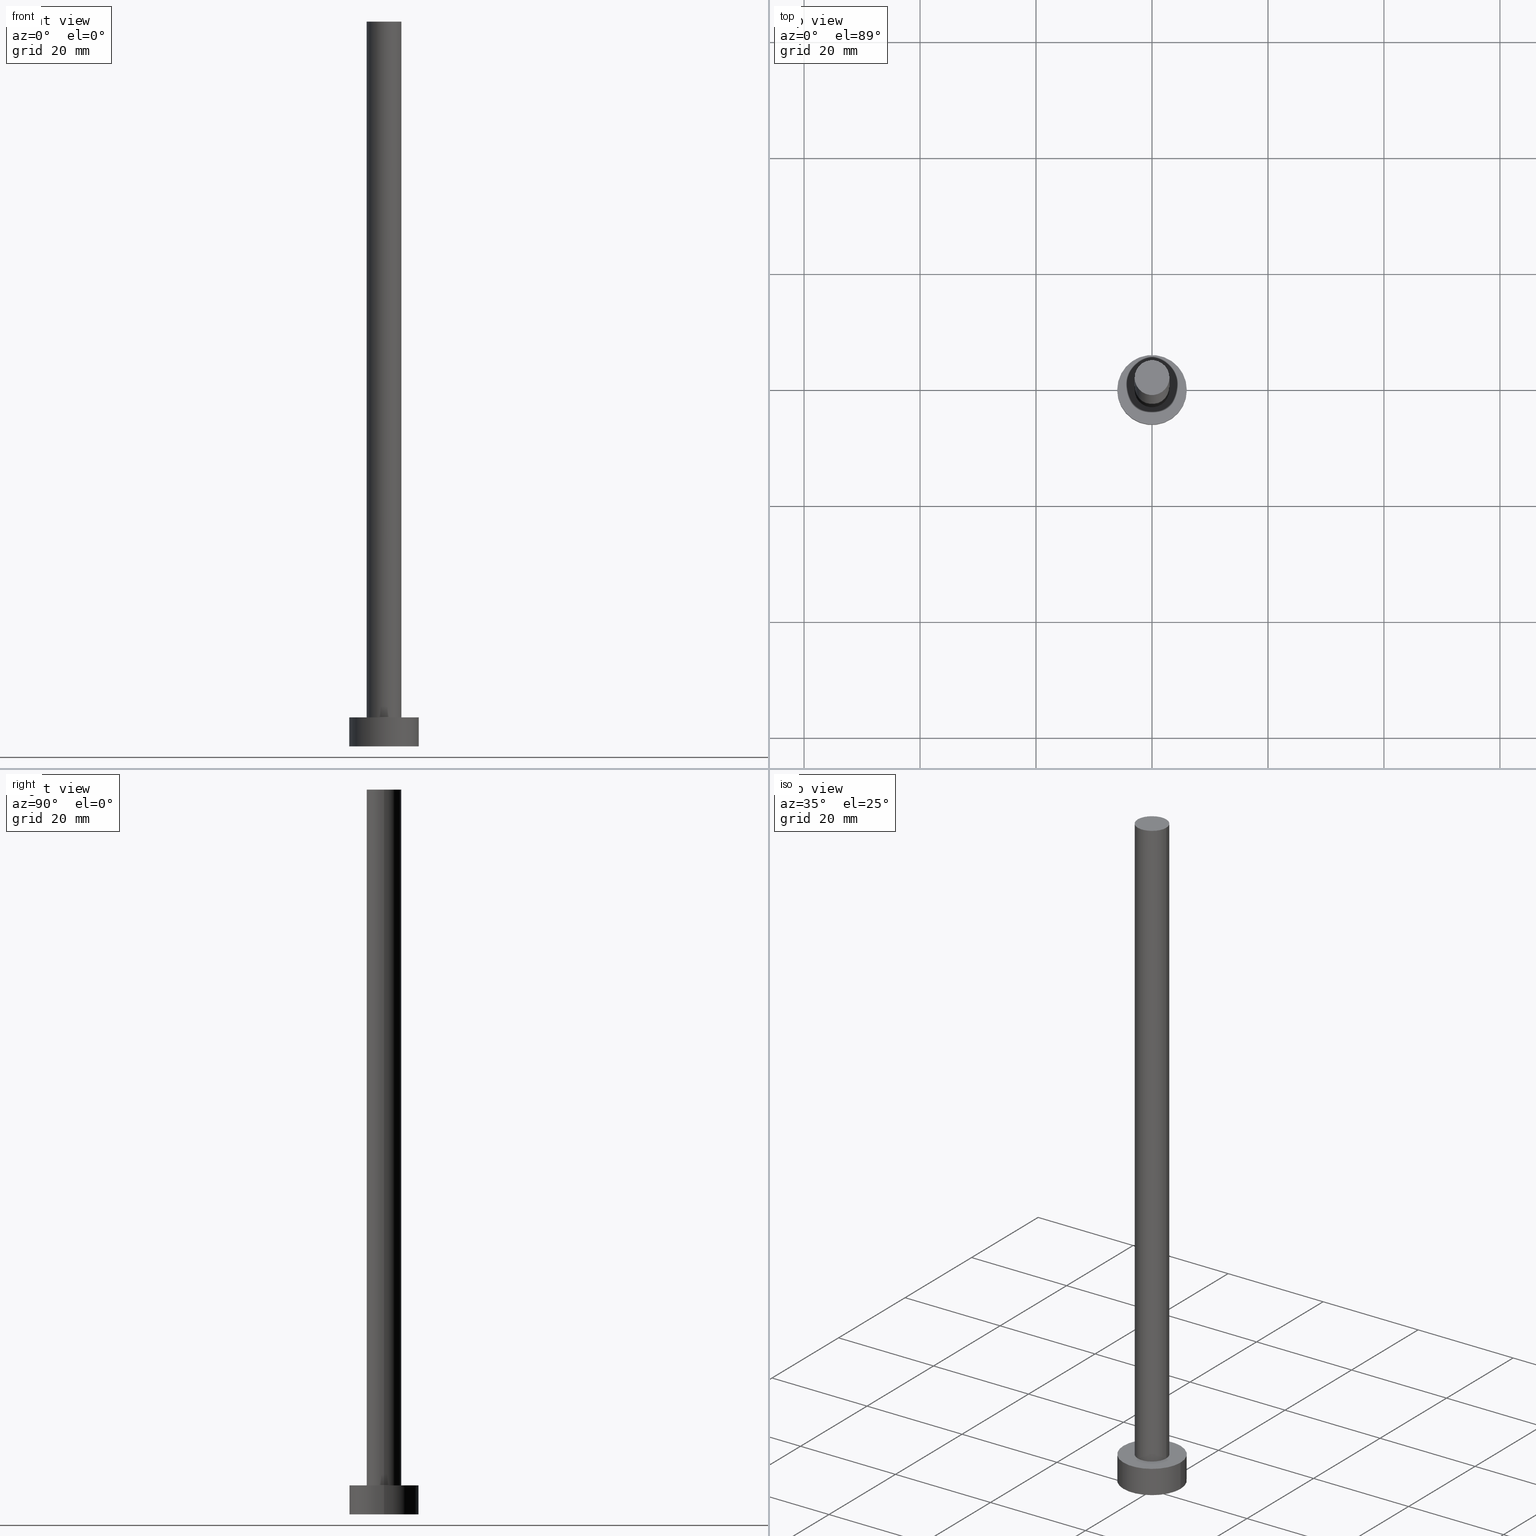
[diagram: canonical four-view strip — front | top / right | iso, engineering-drawing reading convention]
A machine part, canonical four-view strip (front | top / right | iso — engineering-drawing reading convention). The complete STEP part file that produces these views, byte-faithful:
ISO-10303-21;
HEADER;
FILE_DESCRIPTION (( 'STEP AP203' ),
    '1' );
FILE_NAME ('3642.STEP',
    '2023-02-12T11:40:48',
    ( '' ),
    ( '' ),
    'SwSTEP 2.0',
    'SolidWorks 2019',
    '' );
FILE_SCHEMA (( 'CONFIG_CONTROL_DESIGN' ));
ENDSEC;

DATA;
#1 = PRODUCT_DEFINITION_SHAPE ( 'NONE', 'NONE',  #48 ) ;
#2 = APPROVAL_DATE_TIME ( #132, #21 ) ;
#3 = DIRECTION ( 'NONE',  ( 1.000000000000000000, 0.000000000000000000, -0.000000000000000000 ) ) ;
#4 = PLANE ( 'NONE',  #58 ) ;
#5 = CC_DESIGN_PERSON_AND_ORGANIZATION_ASSIGNMENT ( #253, #150, ( #9 ) ) ;
#6 = DIRECTION ( 'NONE',  ( -0.000000000000000000, -0.000000000000000000, -1.000000000000000000 ) ) ;
#7 = DIRECTION ( 'NONE',  ( -0.000000000000000000, -0.000000000000000000, -1.000000000000000000 ) ) ;
#8 = FACE_BOUND ( 'NONE', #247, .T. ) ;
#9 = PRODUCT_DEFINITION_FORMATION_WITH_SPECIFIED_SOURCE ( 'LIBOVOLN�', '', #250, .NOT_KNOWN. ) ;
#10 = PERSON_AND_ORGANIZATION_ROLE ( 'creator' ) ;
#11 = EDGE_LOOP ( 'NONE', ( #164, #34 ) ) ;
#12 = CALENDAR_DATE ( 2023, 12, 2 ) ;
#13 = VERTEX_POINT ( 'NONE', #75 ) ;
#14 = EDGE_CURVE ( 'NONE', #145, #186, #194, .T. ) ;
#15 = DATE_AND_TIME ( #33, #235 ) ;
#16 = VERTEX_POINT ( 'NONE', #204 ) ;
#17 = LOCAL_TIME ( 12, 40, 48.00000000000000000, #229 ) ;
#18 = PERSON_AND_ORGANIZATION_ROLE ( 'creator' ) ;
#19 = EDGE_LOOP ( 'NONE', ( #51, #208, #71, #73 ) ) ;
#20 = DIRECTION ( 'NONE',  ( -0.000000000000000000, -0.000000000000000000, -1.000000000000000000 ) ) ;
#21 = APPROVAL ( #211, 'NEUR�EN�' ) ;
#22 = AXIS2_PLACEMENT_3D ( 'NONE', #244, #196, #135 ) ;
#23 = AXIS2_PLACEMENT_3D ( 'NONE', #162, #63, #203 ) ;
#24 = LINE ( 'NONE', #66, #37 ) ;
#25 = CARTESIAN_POINT ( 'NONE',  ( 0.000000000000000000, 0.000000000000000000, 0.000000000000000000 ) ) ;
#26 = DIRECTION ( 'NONE',  ( 0.000000000000000000, 0.000000000000000000, 1.000000000000000000 ) ) ;
#27 = CARTESIAN_POINT ( 'NONE',  ( 0.000000000000000000, 0.000000000000000000, 0.000000000000000000 ) ) ;
#28 = ADVANCED_FACE ( 'NONE', ( #183 ), #166, .T. ) ;
#29 = ORIENTED_EDGE ( 'NONE', *, *, #153, .T. ) ;
#30 = ORIENTED_EDGE ( 'NONE', *, *, #156, .T. ) ;
#31 = CIRCLE ( 'NONE', #225, 6.000000000000000888 ) ;
#32 = CARTESIAN_POINT ( 'NONE',  ( 0.000000000000000000, 0.000000000000000000, 5.000000000000000000 ) ) ;
#33 = CALENDAR_DATE ( 2023, 12, 2 ) ;
#34 = ORIENTED_EDGE ( 'NONE', *, *, #156, .F. ) ;
#35 = APPLICATION_PROTOCOL_DEFINITION ( 'international standard', 'config_control_design', 1994, #184 ) ;
#36 = CARTESIAN_POINT ( 'NONE',  ( 0.000000000000000000, 0.000000000000000000, 5.000000000000000000 ) ) ;
#37 = VECTOR ( 'NONE', #174, 1000.000000000000000 ) ;
#38 = CALENDAR_DATE ( 2023, 12, 2 ) ;
#39 = CARTESIAN_POINT ( 'NONE',  ( 0.000000000000000000, 0.000000000000000000, 5.000000000000000000 ) ) ;
#40 = DIRECTION ( 'NONE',  ( -0.000000000000000000, -0.000000000000000000, -1.000000000000000000 ) ) ;
#41 = APPROVAL ( #128, 'NEUR�EN�' ) ;
#42 = DIRECTION ( 'NONE',  ( 0.000000000000000000, 0.000000000000000000, 1.000000000000000000 ) ) ;
#43 = AXIS2_PLACEMENT_3D ( 'NONE', #39, #40, #192 ) ;
#44 = ADVANCED_FACE ( 'NONE', ( #8, #53 ), #209, .T. ) ;
#45 = AXIS2_PLACEMENT_3D ( 'NONE', #106, #101, #249 ) ;
#46 = CC_DESIGN_PERSON_AND_ORGANIZATION_ASSIGNMENT ( #187, #18, ( #9 ) ) ;
#47 = CARTESIAN_POINT ( 'NONE',  ( 0.000000000000000000, 0.000000000000000000, 125.0000000000000000 ) ) ;
#48 = PRODUCT_DEFINITION ( 'NEZN�M�', '', #9, #120 ) ;
#49 = APPLICATION_PROTOCOL_DEFINITION ( 'international standard', 'config_control_design', 1994, #218 ) ;
#50 = EDGE_LOOP ( 'NONE', ( #131, #254, #30, #189 ) ) ;
#51 = ORIENTED_EDGE ( 'NONE', *, *, #202, .F. ) ;
#52 = PERSON_AND_ORGANIZATION ( #228, #243 ) ;
#53 = FACE_OUTER_BOUND ( 'NONE', #127, .T. ) ;
#54 = APPROVAL_DATE_TIME ( #15, #41 ) ;
#55 = ORIENTED_EDGE ( 'NONE', *, *, #67, .T. ) ;
#56 = PERSON_AND_ORGANIZATION ( #228, #243 ) ;
#57 = ORIENTED_EDGE ( 'NONE', *, *, #14, .F. ) ;
#58 = AXIS2_PLACEMENT_3D ( 'NONE', #111, #193, #213 ) ;
#59 = COORDINATED_UNIVERSAL_TIME_OFFSET ( 1, 0, .AHEAD. ) ;
#60 = SHAPE_DEFINITION_REPRESENTATION ( #1, #114 ) ;
#61 = CARTESIAN_POINT ( 'NONE',  ( -3.000000000000000444, 0.000000000000000000, 125.0000000000000000 ) ) ;
#62 = FACE_OUTER_BOUND ( 'NONE', #19, .T. ) ;
#63 = DIRECTION ( 'NONE',  ( 0.000000000000000000, 0.000000000000000000, 1.000000000000000000 ) ) ;
#64 = CC_DESIGN_DATE_AND_TIME_ASSIGNMENT ( #216, #236, ( #181 ) ) ;
#65 = DIRECTION ( 'NONE',  ( 1.000000000000000000, 0.000000000000000000, 0.000000000000000000 ) ) ;
#66 = CARTESIAN_POINT ( 'NONE',  ( -6.000000000000000888, 0.000000000000000000, 5.000000000000000000 ) ) ;
#67 = EDGE_CURVE ( 'NONE', #107, #89, #92, .T. ) ;
#68 = PERSON_AND_ORGANIZATION ( #228, #243 ) ;
#69 = CC_DESIGN_APPROVAL ( #21, ( #181 ) ) ;
#70 = ORIENTED_EDGE ( 'NONE', *, *, #124, .F. ) ;
#71 = ORIENTED_EDGE ( 'NONE', *, *, #170, .T. ) ;
#72 = APPROVAL_ROLE ( '' ) ;
#73 = ORIENTED_EDGE ( 'NONE', *, *, #199, .T. ) ;
#74 = LOCAL_TIME ( 12, 40, 48.00000000000000000, #178 ) ;
#75 = CARTESIAN_POINT ( 'NONE',  ( 6.000000000000000888, 7.347880794884120722E-16, 5.000000000000000000 ) ) ;
#76 = CARTESIAN_POINT ( 'NONE',  ( 3.000000000000000444, 3.673940397442060361E-16, 125.0000000000000000 ) ) ;
#77 = ADVANCED_FACE ( 'NONE', ( #78 ), #4, .F. ) ;
#78 = FACE_OUTER_BOUND ( 'NONE', #11, .T. ) ;
#79 = FACE_OUTER_BOUND ( 'NONE', #232, .T. ) ;
#80 = CLOSED_SHELL ( 'NONE', ( #28, #191, #117, #44, #77, #97, #233 ) ) ;
#81 = CARTESIAN_POINT ( 'NONE',  ( 0.000000000000000000, 0.000000000000000000, 5.000000000000000000 ) ) ;
#82 = DIRECTION ( 'NONE',  ( 0.000000000000000000, 0.000000000000000000, 1.000000000000000000 ) ) ;
#83 = CC_DESIGN_PERSON_AND_ORGANIZATION_ASSIGNMENT ( #68, #10, ( #48 ) ) ;
#84 = CC_DESIGN_APPROVAL ( #248, ( #48 ) ) ;
#85 = DATE_TIME_ROLE ( 'creation_date' ) ;
#86 = ORIENTED_EDGE ( 'NONE', *, *, #67, .F. ) ;
#87 = ORIENTED_EDGE ( 'NONE', *, *, #142, .F. ) ;
#88 = AXIS2_PLACEMENT_3D ( 'NONE', #100, #82, #159 ) ;
#89 = VERTEX_POINT ( 'NONE', #76 ) ;
#90 = CC_DESIGN_DATE_AND_TIME_ASSIGNMENT ( #231, #85, ( #48 ) ) ;
#91 = CARTESIAN_POINT ( 'NONE',  ( 3.000000000000000444, 3.673940397442060361E-16, 125.0000000000000000 ) ) ;
#92 = CIRCLE ( 'NONE', #104, 3.000000000000000444 ) ;
#93 = CIRCLE ( 'NONE', #140, 3.000000000000000444 ) ;
#94 = COORDINATED_UNIVERSAL_TIME_OFFSET ( 1, 0, .AHEAD. ) ;
#95 = CALENDAR_DATE ( 2023, 12, 2 ) ;
#96 = CARTESIAN_POINT ( 'NONE',  ( 3.000000000000000444, 3.673940397442060361E-16, 5.000000000000000000 ) ) ;
#97 = ADVANCED_FACE ( 'NONE', ( #79 ), #154, .T. ) ;
#98 = DIRECTION ( 'NONE',  ( 0.000000000000000000, 0.000000000000000000, 1.000000000000000000 ) ) ;
#99 = VECTOR ( 'NONE', #6, 1000.000000000000000 ) ;
#100 = CARTESIAN_POINT ( 'NONE',  ( 0.000000000000000000, 0.000000000000000000, 5.000000000000000000 ) ) ;
#101 = DIRECTION ( 'NONE',  ( 0.000000000000000000, 0.000000000000000000, 1.000000000000000000 ) ) ;
#102 = DIRECTION ( 'NONE',  ( 1.000000000000000000, 0.000000000000000000, 0.000000000000000000 ) ) ;
#103 = APPROVAL_STATUS ( 'not_yet_approved' ) ;
#104 = AXIS2_PLACEMENT_3D ( 'NONE', #115, #42, #109 ) ;
#105 = CC_DESIGN_PERSON_AND_ORGANIZATION_ASSIGNMENT ( #56, #110, ( #181 ) ) ;
#106 = CARTESIAN_POINT ( 'NONE',  ( 0.000000000000000000, 0.000000000000000000, 0.000000000000000000 ) ) ;
#107 = VERTEX_POINT ( 'NONE', #61 ) ;
#108 = EDGE_LOOP ( 'NONE', ( #55, #182 ) ) ;
#109 = DIRECTION ( 'NONE',  ( 1.000000000000000000, 0.000000000000000000, 0.000000000000000000 ) ) ;
#110 = PERSON_AND_ORGANIZATION_ROLE ( 'classification_officer' ) ;
#111 = CARTESIAN_POINT ( 'NONE',  ( 0.000000000000000000, 0.000000000000000000, 0.000000000000000000 ) ) ;
#112 = DIRECTION ( 'NONE',  ( 0.000000000000000000, 0.000000000000000000, 1.000000000000000000 ) ) ;
#113 = CC_DESIGN_SECURITY_CLASSIFICATION ( #181, ( #9 ) ) ;
#114 = ADVANCED_BREP_SHAPE_REPRESENTATION ( '3642', ( #144, #45 ), #137 ) ;
#115 = CARTESIAN_POINT ( 'NONE',  ( 0.000000000000000000, 0.000000000000000000, 125.0000000000000000 ) ) ;
#116 = PRODUCT_RELATED_PRODUCT_CATEGORY ( 'detail', '', ( #250 ) ) ;
#117 = ADVANCED_FACE ( 'NONE', ( #62 ), #215, .T. ) ;
#118 = DIRECTION ( 'NONE',  ( 0.000000000000000000, 0.000000000000000000, 1.000000000000000000 ) ) ;
#119 = FACE_OUTER_BOUND ( 'NONE', #108, .T. ) ;
#120 = DESIGN_CONTEXT ( 'detailed design', #184, 'design' ) ;
#121 = PERSON_AND_ORGANIZATION_ROLE ( 'design_owner' ) ;
#122 = CIRCLE ( 'NONE', #22, 6.000000000000000888 ) ;
#123 = PERSON_AND_ORGANIZATION ( #228, #243 ) ;
#124 = EDGE_CURVE ( 'NONE', #107, #145, #134, .T. ) ;
#125 = VERTEX_POINT ( 'NONE', #195 ) ;
#126 = VECTOR ( 'NONE', #220, 1000.000000000000000 ) ;
#127 = EDGE_LOOP ( 'NONE', ( #251, #255 ) ) ;
#128 = APPROVAL_STATUS ( 'not_yet_approved' ) ;
#129 = EDGE_LOOP ( 'NONE', ( #143, #29, #151, #70 ) ) ;
#130 = DIRECTION ( 'NONE',  ( 0.000000000000000000, 0.000000000000000000, 1.000000000000000000 ) ) ;
#131 = ORIENTED_EDGE ( 'NONE', *, *, #224, .F. ) ;
#132 = DATE_AND_TIME ( #38, #161 ) ;
#133 = AXIS2_PLACEMENT_3D ( 'NONE', #25, #26, #65 ) ;
#134 = LINE ( 'NONE', #219, #147 ) ;
#135 = DIRECTION ( 'NONE',  ( 1.000000000000000000, 0.000000000000000000, 0.000000000000000000 ) ) ;
#136 =( LENGTH_UNIT ( ) NAMED_UNIT ( * ) SI_UNIT ( .MILLI., .METRE. ) );
#137 =( GEOMETRIC_REPRESENTATION_CONTEXT ( 3 ) GLOBAL_UNCERTAINTY_ASSIGNED_CONTEXT ( ( #226 ) ) GLOBAL_UNIT_ASSIGNED_CONTEXT ( ( #136, #221, #200 ) ) REPRESENTATION_CONTEXT ( 'NONE', 'WORKASPACE' ) );
#138 = CC_DESIGN_PERSON_AND_ORGANIZATION_ASSIGNMENT ( #123, #121, ( #250 ) ) ;
#139 = DIRECTION ( 'NONE',  ( 1.000000000000000000, 0.000000000000000000, 0.000000000000000000 ) ) ;
#140 = AXIS2_PLACEMENT_3D ( 'NONE', #47, #118, #201 ) ;
#141 = DATE_AND_TIME ( #12, #74 ) ;
#142 = EDGE_CURVE ( 'NONE', #186, #145, #175, .T. ) ;
#143 = ORIENTED_EDGE ( 'NONE', *, *, #210, .F. ) ;
#144 = MANIFOLD_SOLID_BREP ( 'P�idat vysunut�m3', #80 ) ;
#145 = VERTEX_POINT ( 'NONE', #190 ) ;
#146 = APPROVAL_DATE_TIME ( #141, #248 ) ;
#147 = VECTOR ( 'NONE', #20, 1000.000000000000000 ) ;
#148 = CARTESIAN_POINT ( 'NONE',  ( 0.000000000000000000, 0.000000000000000000, 125.0000000000000000 ) ) ;
#149 = MECHANICAL_CONTEXT ( 'NONE', #218, 'mechanical' ) ;
#150 = PERSON_AND_ORGANIZATION_ROLE ( 'design_supplier' ) ;
#151 = ORIENTED_EDGE ( 'NONE', *, *, #142, .T. ) ;
#152 = APPROVAL_ROLE ( '' ) ;
#153 = EDGE_CURVE ( 'NONE', #89, #186, #240, .T. ) ;
#154 = CYLINDRICAL_SURFACE ( 'NONE', #180, 3.000000000000000444 ) ;
#155 = DIRECTION ( 'NONE',  ( -0.000000000000000000, -0.000000000000000000, -1.000000000000000000 ) ) ;
#156 = EDGE_CURVE ( 'NONE', #125, #206, #252, .T. ) ;
#157 = APPROVAL_PERSON_ORGANIZATION ( #185, #41, #246 ) ;
#158 = DIRECTION ( 'NONE',  ( 0.000000000000000000, 0.000000000000000000, 1.000000000000000000 ) ) ;
#159 = DIRECTION ( 'NONE',  ( 1.000000000000000000, 0.000000000000000000, 0.000000000000000000 ) ) ;
#160 = LINE ( 'NONE', #242, #126 ) ;
#161 = LOCAL_TIME ( 12, 40, 48.00000000000000000, #59 ) ;
#162 = CARTESIAN_POINT ( 'NONE',  ( 0.000000000000000000, 0.000000000000000000, 125.0000000000000000 ) ) ;
#163 = CALENDAR_DATE ( 2023, 12, 2 ) ;
#164 = ORIENTED_EDGE ( 'NONE', *, *, #199, .F. ) ;
#165 = EDGE_CURVE ( 'NONE', #16, #13, #122, .T. ) ;
#166 = CYLINDRICAL_SURFACE ( 'NONE', #205, 3.000000000000000444 ) ;
#167 = CC_DESIGN_APPROVAL ( #41, ( #9 ) ) ;
#168 = ORIENTED_EDGE ( 'NONE', *, *, #153, .F. ) ;
#169 = CARTESIAN_POINT ( 'NONE',  ( 0.000000000000000000, 0.000000000000000000, 125.0000000000000000 ) ) ;
#170 = EDGE_CURVE ( 'NONE', #16, #206, #24, .T. ) ;
#171 = AXIS2_PLACEMENT_3D ( 'NONE', #36, #112, #3 ) ;
#172 = LOCAL_TIME ( 12, 40, 48.00000000000000000, #94 ) ;
#173 = CARTESIAN_POINT ( 'NONE',  ( -6.000000000000000888, 0.000000000000000000, 0.000000000000000000 ) ) ;
#174 = DIRECTION ( 'NONE',  ( -0.000000000000000000, -0.000000000000000000, -1.000000000000000000 ) ) ;
#175 = CIRCLE ( 'NONE', #217, 3.000000000000000444 ) ;
#176 = FACE_OUTER_BOUND ( 'NONE', #50, .T. ) ;
#177 = DIRECTION ( 'NONE',  ( -1.000000000000000000, 0.000000000000000000, 0.000000000000000000 ) ) ;
#178 = COORDINATED_UNIVERSAL_TIME_OFFSET ( 1, 0, .AHEAD. ) ;
#179 = DIRECTION ( 'NONE',  ( -1.000000000000000000, 0.000000000000000000, 0.000000000000000000 ) ) ;
#180 = AXIS2_PLACEMENT_3D ( 'NONE', #169, #155, #238 ) ;
#181 = SECURITY_CLASSIFICATION ( '', '', #214 ) ;
#182 = ORIENTED_EDGE ( 'NONE', *, *, #210, .T. ) ;
#183 = FACE_OUTER_BOUND ( 'NONE', #129, .T. ) ;
#184 = APPLICATION_CONTEXT ( 'configuration controlled 3d designs of mechanical parts and assemblies' ) ;
#185 = PERSON_AND_ORGANIZATION ( #228, #243 ) ;
#186 = VERTEX_POINT ( 'NONE', #96 ) ;
#187 = PERSON_AND_ORGANIZATION ( #228, #243 ) ;
#188 = CIRCLE ( 'NONE', #88, 6.000000000000000888 ) ;
#189 = ORIENTED_EDGE ( 'NONE', *, *, #170, .F. ) ;
#190 = CARTESIAN_POINT ( 'NONE',  ( -3.000000000000000444, 0.000000000000000000, 5.000000000000000000 ) ) ;
#191 = ADVANCED_FACE ( 'NONE', ( #176 ), #198, .T. ) ;
#192 = DIRECTION ( 'NONE',  ( -1.000000000000000000, 0.000000000000000000, 0.000000000000000000 ) ) ;
#193 = DIRECTION ( 'NONE',  ( 0.000000000000000000, 0.000000000000000000, 1.000000000000000000 ) ) ;
#194 = CIRCLE ( 'NONE', #222, 3.000000000000000444 ) ;
#195 = CARTESIAN_POINT ( 'NONE',  ( 6.000000000000000888, 7.347880794884120722E-16, 0.000000000000000000 ) ) ;
#196 = DIRECTION ( 'NONE',  ( 0.000000000000000000, 0.000000000000000000, 1.000000000000000000 ) ) ;
#197 = AXIS2_PLACEMENT_3D ( 'NONE', #245, #7, #177 ) ;
#198 = CYLINDRICAL_SURFACE ( 'NONE', #197, 6.000000000000000888 ) ;
#199 = EDGE_CURVE ( 'NONE', #206, #125, #31, .T. ) ;
#200 =( NAMED_UNIT ( * ) SI_UNIT ( $, .STERADIAN. ) SOLID_ANGLE_UNIT ( ) );
#201 = DIRECTION ( 'NONE',  ( 1.000000000000000000, 0.000000000000000000, 0.000000000000000000 ) ) ;
#202 = EDGE_CURVE ( 'NONE', #13, #125, #160, .T. ) ;
#203 = DIRECTION ( 'NONE',  ( 1.000000000000000000, 0.000000000000000000, -0.000000000000000000 ) ) ;
#204 = CARTESIAN_POINT ( 'NONE',  ( -6.000000000000000888, 0.000000000000000000, 5.000000000000000000 ) ) ;
#205 = AXIS2_PLACEMENT_3D ( 'NONE', #148, #230, #179 ) ;
#206 = VERTEX_POINT ( 'NONE', #173 ) ;
#207 = COORDINATED_UNIVERSAL_TIME_OFFSET ( 1, 0, .AHEAD. ) ;
#208 = ORIENTED_EDGE ( 'NONE', *, *, #165, .F. ) ;
#209 = PLANE ( 'NONE',  #171 ) ;
#210 = EDGE_CURVE ( 'NONE', #89, #107, #93, .T. ) ;
#211 = APPROVAL_STATUS ( 'not_yet_approved' ) ;
#212 = DIRECTION ( 'NONE',  ( 1.000000000000000000, 0.000000000000000000, 0.000000000000000000 ) ) ;
#213 = DIRECTION ( 'NONE',  ( 1.000000000000000000, 0.000000000000000000, -0.000000000000000000 ) ) ;
#214 = SECURITY_CLASSIFICATION_LEVEL ( 'unclassified' ) ;
#215 = CYLINDRICAL_SURFACE ( 'NONE', #43, 6.000000000000000888 ) ;
#216 = DATE_AND_TIME ( #95, #172 ) ;
#217 = AXIS2_PLACEMENT_3D ( 'NONE', #81, #158, #212 ) ;
#218 = APPLICATION_CONTEXT ( 'configuration controlled 3d designs of mechanical parts and assemblies' ) ;
#219 = CARTESIAN_POINT ( 'NONE',  ( -3.000000000000000444, 0.000000000000000000, 125.0000000000000000 ) ) ;
#220 = DIRECTION ( 'NONE',  ( -0.000000000000000000, -0.000000000000000000, -1.000000000000000000 ) ) ;
#221 =( NAMED_UNIT ( * ) PLANE_ANGLE_UNIT ( ) SI_UNIT ( $, .RADIAN. ) );
#222 = AXIS2_PLACEMENT_3D ( 'NONE', #32, #130, #102 ) ;
#223 = APPROVAL_PERSON_ORGANIZATION ( #52, #248, #72 ) ;
#224 = EDGE_CURVE ( 'NONE', #13, #16, #188, .T. ) ;
#225 = AXIS2_PLACEMENT_3D ( 'NONE', #27, #98, #139 ) ;
#226 = UNCERTAINTY_MEASURE_WITH_UNIT (LENGTH_MEASURE( 1.000000000000000082E-05 ), #136, 'distance_accuracy_value', 'NONE');
#227 = ORIENTED_EDGE ( 'NONE', *, *, #124, .T. ) ;
#228 = PERSON ( 'NEUR�EN�', 'NEUR�EN�', 'NEUR�EN�', ('NEUR�EN�'), ('NEUR�EN�'), ('NEUR�EN�') ) ;
#229 = COORDINATED_UNIVERSAL_TIME_OFFSET ( 1, 0, .AHEAD. ) ;
#230 = DIRECTION ( 'NONE',  ( -0.000000000000000000, -0.000000000000000000, -1.000000000000000000 ) ) ;
#231 = DATE_AND_TIME ( #163, #17 ) ;
#232 = EDGE_LOOP ( 'NONE', ( #168, #86, #227, #234 ) ) ;
#233 = ADVANCED_FACE ( 'NONE', ( #119 ), #241, .T. ) ;
#234 = ORIENTED_EDGE ( 'NONE', *, *, #14, .T. ) ;
#235 = LOCAL_TIME ( 12, 40, 48.00000000000000000, #207 ) ;
#236 = DATE_TIME_ROLE ( 'classification_date' ) ;
#237 = PERSON_AND_ORGANIZATION ( #228, #243 ) ;
#238 = DIRECTION ( 'NONE',  ( -1.000000000000000000, 0.000000000000000000, 0.000000000000000000 ) ) ;
#239 = APPROVAL_PERSON_ORGANIZATION ( #237, #21, #152 ) ;
#240 = LINE ( 'NONE', #91, #99 ) ;
#241 = PLANE ( 'NONE',  #23 ) ;
#242 = CARTESIAN_POINT ( 'NONE',  ( 6.000000000000000888, 7.347880794884120722E-16, 5.000000000000000000 ) ) ;
#243 = ORGANIZATION ( 'NEUR�EN�', 'NEUR�EN�', '' ) ;
#244 = CARTESIAN_POINT ( 'NONE',  ( 0.000000000000000000, 0.000000000000000000, 5.000000000000000000 ) ) ;
#245 = CARTESIAN_POINT ( 'NONE',  ( 0.000000000000000000, 0.000000000000000000, 5.000000000000000000 ) ) ;
#246 = APPROVAL_ROLE ( '' ) ;
#247 = EDGE_LOOP ( 'NONE', ( #57, #87 ) ) ;
#248 = APPROVAL ( #103, 'NEUR�EN�' ) ;
#249 = DIRECTION ( 'NONE',  ( 1.000000000000000000, 0.000000000000000000, 0.000000000000000000 ) ) ;
#250 = PRODUCT ( '3642', '3642', '', ( #149 ) ) ;
#251 = ORIENTED_EDGE ( 'NONE', *, *, #165, .T. ) ;
#252 = CIRCLE ( 'NONE', #133, 6.000000000000000888 ) ;
#253 = PERSON_AND_ORGANIZATION ( #228, #243 ) ;
#254 = ORIENTED_EDGE ( 'NONE', *, *, #202, .T. ) ;
#255 = ORIENTED_EDGE ( 'NONE', *, *, #224, .T. ) ;
ENDSEC;
END-ISO-10303-21;
